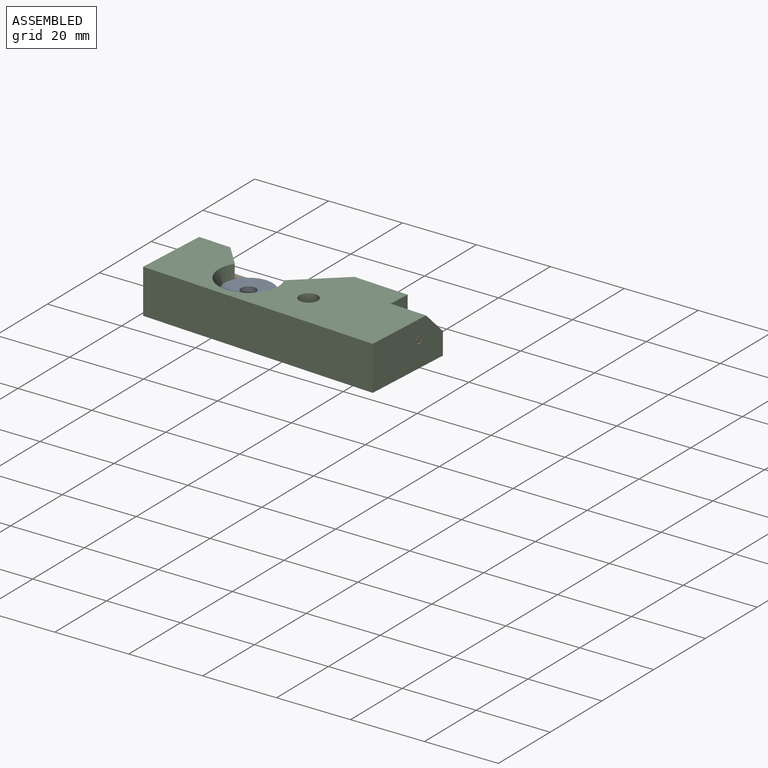
[diagram: assembled view]
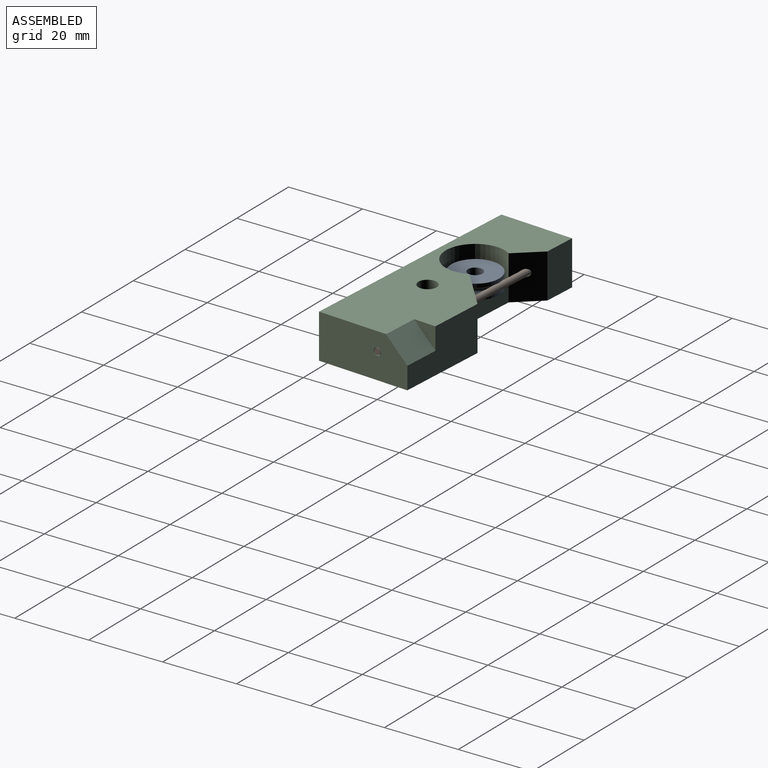
[diagram: assembled view, second angle]
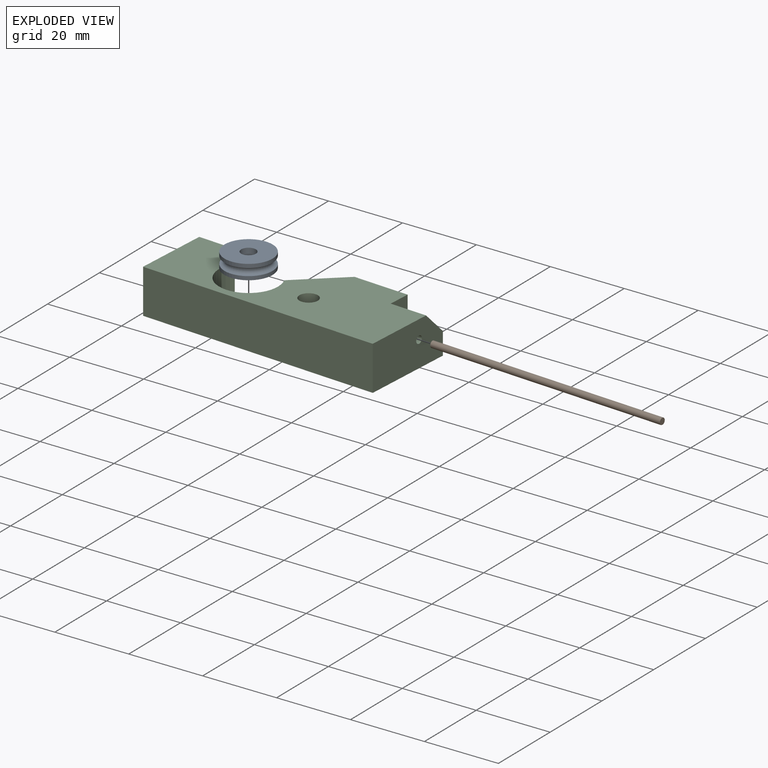
[diagram: exploded view]
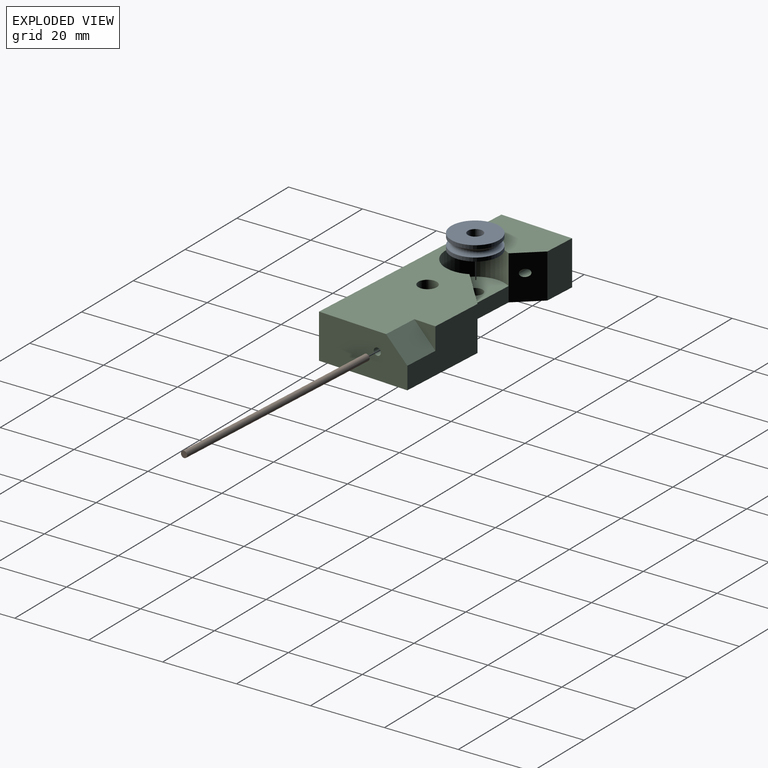
[diagram: exploded view, second angle]
ASSEMBLY  parts=3 mates=2
PART A: 6 faces, bbox 15.6x15.6x4 mm
  f0: cylinder r=2mm len=4mm, axis (0,0,-1), area 50.3mm2, adj f1,f5
  f1: plane 13x13mm, normal (0,0,-1), area 120.2mm2, adj f0,f2
  f2: cylinder r=6.5mm len=13mm, axis (0,0,-1), area 40.8mm2, adj f1,f3
  f3: torus R=6.5mm, axis (0,0,-1), area 115.7mm2, adj f2,f4
  f4: cylinder r=6.5mm len=13mm, axis (0,0,-1), area 40.8mm2, adj f3,f5
  f5: plane 13x13mm, normal (0,0,1), area 120.2mm2, adj f0,f4
PART B: 3 faces, bbox 65x1.8x1.8 mm
  f0: plane 1.75x1.75mm, normal (1,0,0), area 2.4mm2, adj f1
  f1: cylinder r=0.88mm len=65mm, axis (-1,0,0), area 357.4mm2, adj f0,f2
  f2: plane 1.75x1.75mm, normal (-1,0,0), area 2.4mm2, adj f1
PART C: 18 faces, bbox 65.4x25.4x12.4 mm
  f0: plane 65x25mm, normal (0,0,1), area 1075mm2, adj f1,f2,f3,f4,f5,f6,f7,f8
  f1: plane 12.42x6.52mm, normal (0.71,0.71,0), area 99.1mm2, adj f0,f2,f9,f10,f11,f15
  f2: plane 12x8.82mm, normal (0,1,0), area 105.9mm2, adj f0,f1,f3,f10
  f3: plane 20x12mm, normal (-1,0,0), area 236.9mm2, adj f0,f2,f4,f10,f15
  f4: plane 65x12mm, normal (0,-1,0), area 780mm2, adj f0,f3,f5,f10
  f5: plane 25x12mm, normal (1,0,0), area 278.9mm2, adj f0,f4,f6,f10,f14,f16
  f6: plane 25x12mm, normal (0,1,0), area 240mm2, adj f0,f5,f7,f10,f16,f17
  f7: plane 12x11.1mm, normal (-0.71,0.71,0), area 184mm2, adj f0,f6,f9,f10,f11,f14
  f8: cylinder r=2.5mm len=12mm, axis (0,0,-1), area 188.5mm2, adj f0,f10
  f9: cylinder r=8mm len=16mm, axis (0,0,-1), area 266.2mm2, adj f0,f1,f7,f13
  f10: plane 65x25mm, normal (0,0,-1), area 1282.8mm2, adj f1,f2,f3,f4,f5,f6,f7,f8
  f11: plane 13.97x4mm, normal (0,1,0), area 55.9mm2, adj f1,f7,f10,f13
  f12: cylinder r=2mm len=4mm, axis (0,0,-1), area 50.3mm2, adj f10,f13
  f13: plane 16x11.9mm, normal (0,0,1), area 147.8mm2, adj f9,f11,f12
  f14: cylinder r=1mm len=34.5mm, axis (-1,0,0), area 210.5mm2, adj f5,f7
  f15: cylinder r=1mm len=13.33mm, axis (-1,0,0), area 77.6mm2, adj f1,f3
  f16: plane 10x6mm, normal (0,0.71,0.71), area 84.9mm2, adj f0,f5,f6,f17
  f17: plane 6x6mm, normal (1,0,0), area 18mm2, adj f0,f6,f16
PLACE A rot(axis=(0,0,-1),66.8deg) t=(18.53,-34.47,8)mm
PLACE B rot(axis=(0,0,-1),3.5deg) t=(16.71,-74.1,1)mm
PLACE C rot(axis=(0,0,-1),3.5deg) t=(16.71,-74.1,1)mm
MATE fastened B.f1 <-> C.f14  axis (-1,0.06,0) through (-2.95,-26.66,8)mm
MATE revolute A.f0 <-> C.f9  axis (0,0,-1) through (18.53,-34.47,6)mm
